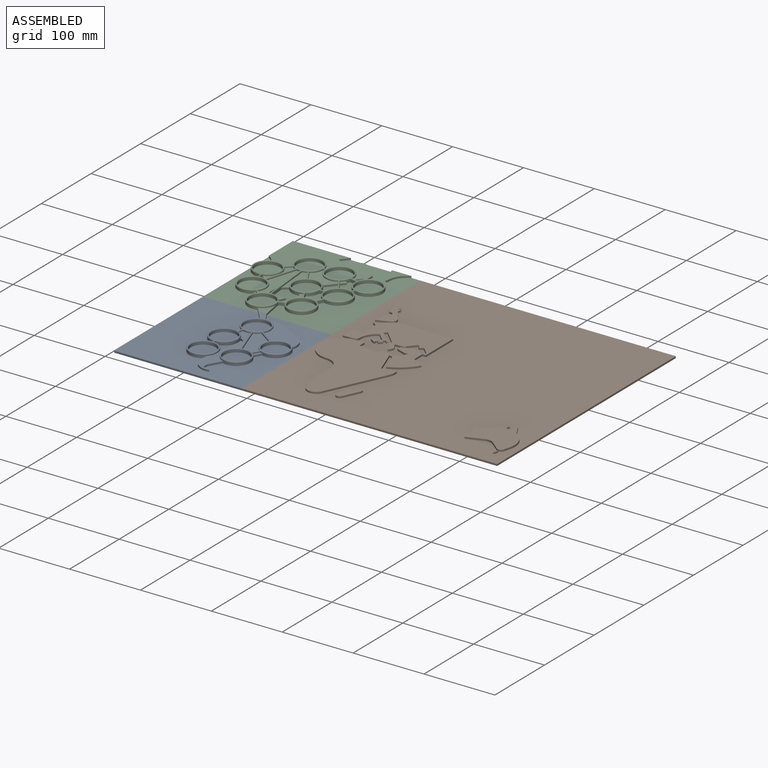
[diagram: assembled view]
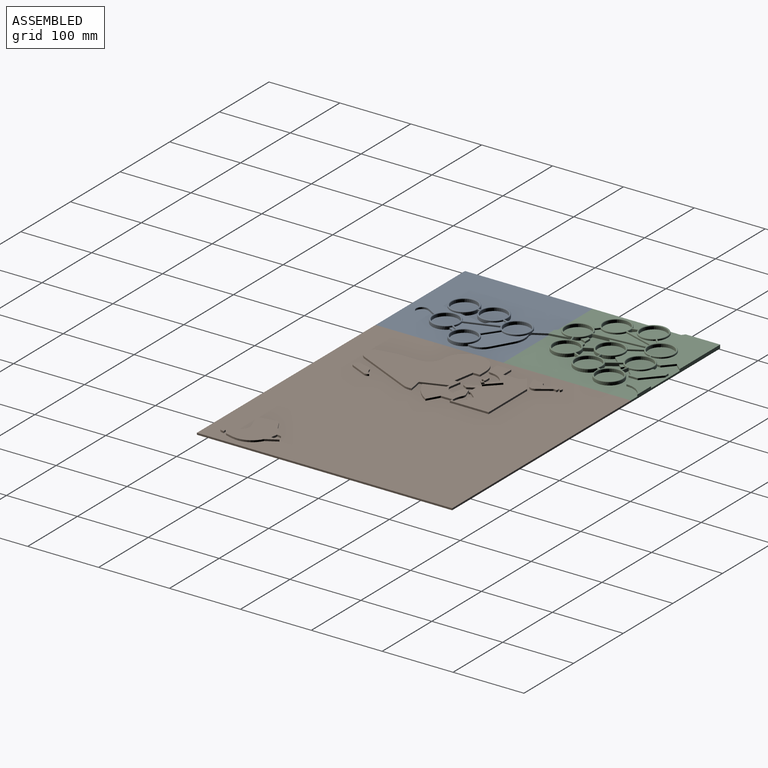
[diagram: assembled view, second angle]
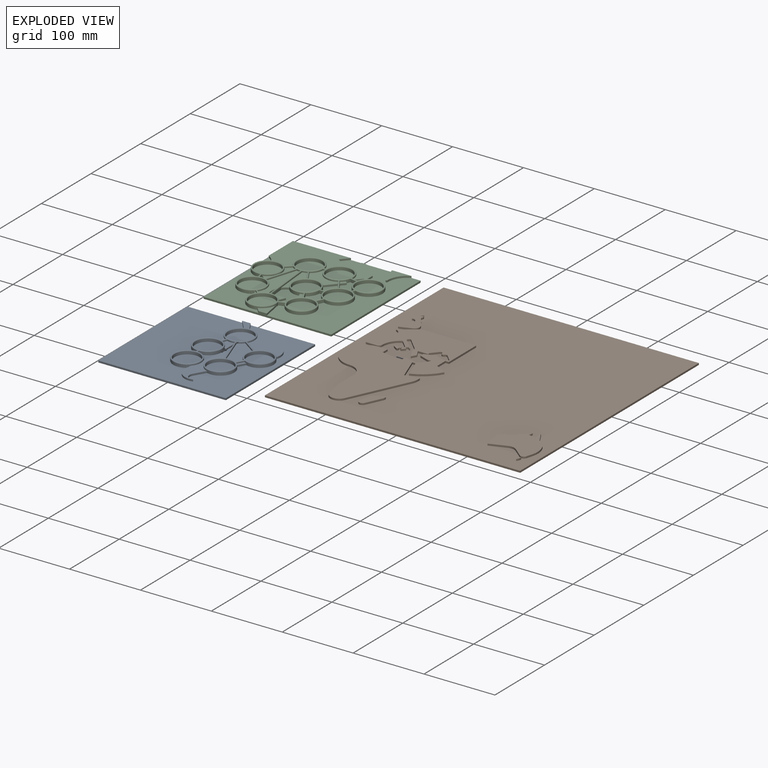
[diagram: exploded view]
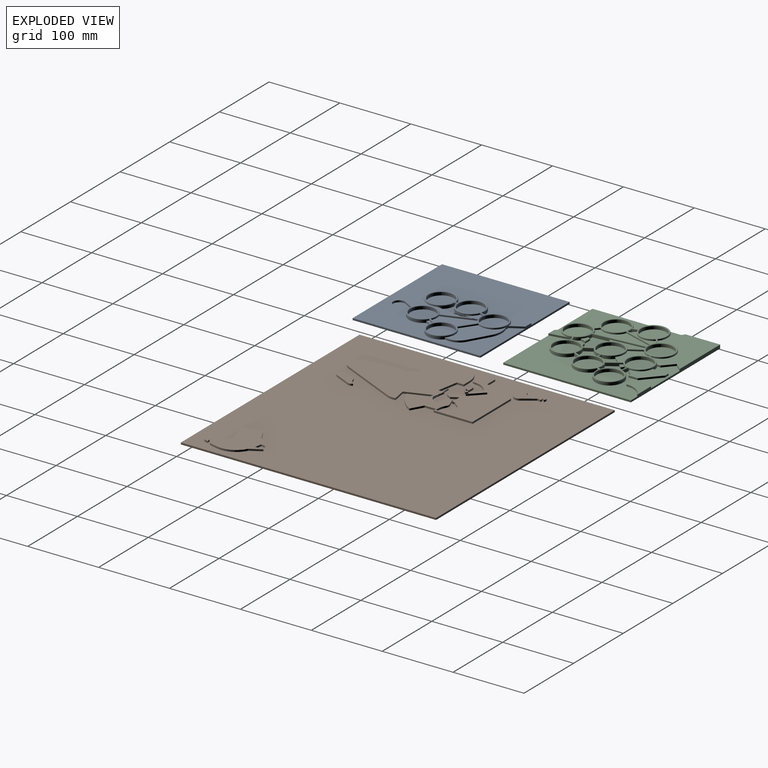
[diagram: exploded view, second angle]
ASSEMBLY  parts=3 mates=2
PART A: 66 faces, bbox 180x180x7.5 mm
  f0: plane 180x180mm, normal (0,0,1), area 22058mm2, adj f2,f4,f6,f7,f8,f9,f10,f11
  f1: plane 41.96x23.86mm, normal (0,0,1), area 302.8mm2, adj f3,f5,f26,f27,f43
  f2: cylinder r=30mm len=11.79mm, axis (0,0,-1), area 31.5mm2, adj f0,f15,f25,f33
  f3: plane 6.7x3.87mm, normal (-0.5,-0.87,0), area 19.3mm2, adj f1,f5,f12,f27
  f4: plane 6.95x2.5mm, normal (-0.98,0.17,0), area 17.6mm2, adj f0,f12,f21,f26
  f5: plane 38.09x6.72mm, normal (-0.98,0.17,0), area 96.7mm2, adj f1,f3,f12,f26
  f6: plane 10.41x6.01mm, normal (0.87,-0.5,0), area 30mm2, adj f0,f13,f28,f29
  f7: plane 16.1x9.29mm, normal (0.87,-0.5,0), area 46.5mm2, adj f0,f12,f22,f28
  f8: cylinder r=20mm len=24.4mm, axis (0,0,-1), area 70.4mm2, adj f0,f23,f24,f29
  f9: cylinder r=30mm len=26.28mm, axis (0,0,-1), area 68.2mm2, adj f0,f23,f24,f33
  f10: plane 16.91x9.76mm, normal (0.87,0.5,0), area 48.8mm2, adj f0,f14,f18,f33
  f11: plane 18.4x15.53mm, normal (-0.76,-0.64,0), area 60.2mm2, adj f0,f14,f18,f33
  f12: plane 109.97x30.74mm, normal (0,0,1), area 1215.6mm2, adj f3,f4,f5,f7,f21,f22,f26,f27
  f13: plane 11.7x8.73mm, normal (0,0,1), area 39.2mm2, adj f6,f28,f29,f47
  f14: plane 21.76x18.4mm, normal (0,0,1), area 169.2mm2, adj f10,f11,f18,f33
  f15: plane 12x7.34mm, normal (0,0,1), area 36.9mm2, adj f2,f25,f33,f41
  f16: plane 180x2.5mm, normal (0,-1,0), area 450mm2, adj f0,f17,f19,f20
  f17: plane 180x2.5mm, normal (1,0,0), area 450mm2, adj f0,f16,f18,f20
  f18: plane 180x5mm, normal (0,1,0), area 480mm2, adj f0,f10,f11,f14,f17,f19,f20
  f19: plane 180x2.5mm, normal (-1,0,0), area 450mm2, adj f0,f16,f18,f20
  f20: plane 180x180mm, normal (0,0,-1), area 32400mm2, adj f16,f17,f18,f19
  f21: cylinder r=20mm len=25.18mm, axis (0,0,-1), area 100.4mm2, adj f0,f4,f12,f22
  f22: cylinder r=8.49mm len=12.74mm, axis (0,0,-1), area 50mm2, adj f0,f7,f12,f21
  f23: plane 27.68x15.98mm, normal (0.5,0.87,0), area 79.9mm2, adj f0,f8,f9,f24
  f24: plane 63.96x46.77mm, normal (0,0,1), area 1480.6mm2, adj f8,f9,f23,f29,f33,f48
  f25: cylinder r=19.5mm len=38.97mm, axis (0,0,-1), area 262mm2, adj f0,f2,f15,f41,f42,f56
  f26: cylinder r=19.5mm len=39mm, axis (0,0,-1), area 428.5mm2, adj f0,f1,f4,f5,f12,f42,f43,f60
  f27: cylinder r=19.5mm len=37.47mm, axis (0,0,-1), area 171mm2, adj f1,f3,f12,f43,f44,f56
  f28: cylinder r=19.5mm len=39mm, axis (0,0,-1), area 286.5mm2, adj f0,f6,f7,f12,f13,f46,f47,f57
  f29: cylinder r=19.5mm len=39mm, axis (0,0,-1), area 263.7mm2, adj f0,f6,f8,f13,f24,f47,f48,f58
  f30: cylinder r=17.5mm len=35mm, axis (0,0,-1), area 439.8mm2, adj f55,f57
  f31: cylinder r=17.5mm len=35mm, axis (0,0,-1), area 439.8mm2, adj f54,f58
  f32: cylinder r=17.5mm len=35mm, axis (0,0,-1), area 439.8mm2, adj f52,f59
  f33: cylinder r=19.5mm len=39mm, axis (0,0,-1), area 246.6mm2, adj f0,f2,f9,f10,f11,f14,f15,f24
  f34: cylinder r=17.5mm len=35mm, axis (0,0,-1), area 439.8mm2, adj f51,f56
  f35: cylinder r=17.5mm len=35mm, axis (0,0,-1), area 439.8mm2, adj f50,f60
  f36: plane 43.97x15.32mm, normal (0.94,0.33,0), area 69.8mm2, adj f37,f49,f53,f64
  f37: cylinder r=19.5mm len=7.99mm, axis (0,0,-1), area 15.2mm2, adj f36,f38,f53,f59
  f38: plane 21.29x15.01mm, normal (-0.58,-0.82,0), area 39.1mm2, adj f37,f39,f53,f63
  f39: cylinder r=19.5mm len=26.77mm, axis (0,0,-1), area 45.6mm2, adj f38,f40,f53,f58
  f40: plane 9.57x5.53mm, normal (-0.87,0.5,0), area 16.6mm2, adj f39,f49,f53,f62
  f41: plane 6.64x2.38mm, normal (-0.94,0.34,0), area 10.6mm2, adj f15,f25,f33,f61
  f42: plane 4x3.05mm, normal (-1,0,0), area 12.2mm2, adj f0,f25,f26,f65
  f43: plane 4x3.05mm, normal (1,0,0), area 12.2mm2, adj f1,f26,f27,f65
  f44: plane 6.64x2.38mm, normal (0.94,-0.34,0), area 10.6mm2, adj f12,f27,f45,f61
  f45: cylinder r=19.5mm len=11.1mm, axis (0,0,-1), area 16.9mm2, adj f12,f44,f46,f59
  f46: plane 43.97x15.32mm, normal (-0.94,-0.33,0), area 69.8mm2, adj f12,f28,f45,f64
  f47: plane 9.57x5.53mm, normal (0.87,-0.5,0), area 16.6mm2, adj f13,f28,f29,f62
  f48: plane 21.29x15.01mm, normal (0.58,0.82,0), area 39.1mm2, adj f24,f29,f33,f63
  f49: cylinder r=19.5mm len=14.33mm, axis (0,0,-1), area 22.1mm2, adj f36,f40,f53,f57
  f50: plane 35x35mm, normal (0,0,1), area 962.1mm2, adj f35
  f51: plane 35x35mm, normal (0,0,1), area 962.1mm2, adj f34
  f52: plane 35x35mm, normal (0,0,1), area 962.1mm2, adj f32
  f53: plane 51.35x35.18mm, normal (0,0,1), area 937.5mm2, adj f36,f37,f38,f39,f40,f49
  f54: plane 35x35mm, normal (0,0,1), area 962.1mm2, adj f31
  f55: plane 35x35mm, normal (0,0,1), area 962.1mm2, adj f30
  f56: torus R=18.5mm, axis (0,0,1), area 361.2mm2, adj f25,f27,f34,f61,f65
  f57: torus R=18.5mm, axis (0,0,1), area 361.2mm2, adj f28,f30,f49,f62,f64
  f58: torus R=18.5mm, axis (0,0,1), area 361.2mm2, adj f29,f31,f39,f62,f63
  f59: torus R=18.5mm, axis (0,0,1), area 359.2mm2, adj f32,f33,f37,f45,f61,f63,f64
  f60: torus R=18.5mm, axis (0,0,1), area 363.2mm2, adj f26,f35,f65
  f61: cylinder r=1mm len=9.15mm, axis (-0.34,-0.94,0), area 24.4mm2, adj f41,f44,f56,f59
  f62: cylinder r=1mm len=12.26mm, axis (0.5,0.87,0), area 36.9mm2, adj f40,f47,f57,f58
  f63: cylinder r=1mm len=24.04mm, axis (-0.82,0.58,0), area 84mm2, adj f38,f48,f58,f59
  f64: cylinder r=1mm len=46.47mm, axis (-0.33,0.94,0), area 148.5mm2, adj f36,f46,f57,f59
  f65: cylinder r=1mm len=5mm, axis (0,1,0), area 11.8mm2, adj f42,f43,f56,f60
PART B: 125 faces, bbox 360x360x5 mm
  f0: plane 360x360mm, normal (0,0,1), area 111601.7mm2, adj f1,f2,f3,f4,f5,f6,f8,f9
  f1: plane 9.77x9.77mm, normal (-0.71,-0.71,0), area 34.5mm2, adj f0,f43,f78,f99
  f2: plane 4.27x2.5mm, normal (-1,0,0), area 10.7mm2, adj f0,f43,f74,f87
  f3: plane 360x2.5mm, normal (0,-1,0), area 900mm2, adj f0,f4,f6,f7
  f4: plane 360x2.5mm, normal (1,0,0), area 900mm2, adj f0,f3,f5,f7
  f5: plane 360x2.5mm, normal (0,1,0), area 900mm2, adj f0,f4,f6,f7
  f6: plane 360x2.5mm, normal (-1,0,0), area 900mm2, adj f0,f3,f5,f7
  f7: plane 360x360mm, normal (0,0,-1), area 129600mm2, adj f3,f4,f5,f6
  f8: plane 5.8x2.5mm, normal (-0.97,-0.26,0), area 15mm2, adj f0,f9,f12,f13
  f9: cylinder r=0.5mm len=2.5mm, axis (0,0,-1), area 2.5mm2, adj f0,f8,f10,f13
  f10: cylinder r=10mm len=6.18mm, axis (0,0,-1), area 16.2mm2, adj f0,f9,f11,f13
  f11: plane 2.9x2.5mm, normal (-0.26,0.97,0), area 7.5mm2, adj f0,f10,f12,f13
  f12: plane 2.5x1.1mm, normal (0.26,0.97,0), area 2.8mm2, adj f0,f8,f11,f13
  f13: plane 6.45x4.02mm, normal (0,0,1), area 15.9mm2, adj f8,f9,f10,f11,f12
  f14: plane 15.56x15.56mm, normal (-0.71,0.71,0), area 55mm2, adj f0,f15,f27,f28
  f15: plane 13.15x7.59mm, normal (-0.5,0.87,0), area 38mm2, adj f0,f14,f16,f28
  f16: cylinder r=5mm len=5.2mm, axis (0,0,-1), area 15.3mm2, adj f0,f15,f17,f28
  f17: plane 24.62x4.34mm, normal (-0.98,-0.17,0), area 62.5mm2, adj f0,f16,f18,f28
  f18: plane 23.49x8.55mm, normal (0.34,-0.94,0), area 62.5mm2, adj f0,f17,f19,f28
  f19: cylinder r=12mm len=11.76mm, axis (0,0,-1), area 31.2mm2, adj f0,f18,f20,f28
  f20: plane 13.74x11.38mm, normal (-0.64,-0.77,0), area 44.6mm2, adj f0,f19,f21,f28
  f21: cylinder r=5mm len=8.02mm, axis (0,0,-1), area 25mm2, adj f0,f20,f22,f28
  f22: plane 9.53x2.55mm, normal (0.97,-0.26,0), area 24.7mm2, adj f0,f21,f23,f28
  f23: cylinder r=30mm len=34.35mm, axis (0,0,-1), area 101.3mm2, adj f0,f22,f24,f28
  f24: plane 15.41x8.9mm, normal (0.87,0.5,0), area 44.5mm2, adj f0,f23,f25,f28
  f25: plane 11.74x2.5mm, normal (-1,0,0), area 29.3mm2, adj f0,f24,f26,f28
  f26: plane 9.85x2.5mm, normal (0.17,0.98,0), area 25mm2, adj f0,f25,f27,f28
  f27: plane 5.98x2.5mm, normal (0.98,-0.17,0), area 15.2mm2, adj f0,f14,f26,f28
  f28: plane 65x63mm, normal (0,0,1), area 2360.7mm2, adj f14,f15,f16,f17,f18,f19,f20,f21
  f29: plane 9.78x2.5mm, normal (1,0,0), area 24.4mm2, adj f0,f30,f42,f43
  f30: plane 12x2.5mm, normal (0,1,0), area 30mm2, adj f0,f29,f31,f43
  f31: cylinder r=30mm len=60mm, axis (0,0,-1), area 235.6mm2, adj f0,f30,f32,f43
  f32: cylinder r=20mm len=20mm, axis (0,0,-1), area 78.5mm2, adj f0,f31,f33,f43
  f33: plane 30.04x2.5mm, normal (-1,0,0), area 75.1mm2, adj f0,f32,f34,f43
  f34: plane 24.62x4.34mm, normal (-0.98,-0.17,0), area 62.5mm2, adj f0,f33,f35,f43
  f35: cylinder r=12.5mm len=23.64mm, axis (0,0,-1), area 79.1mm2, adj f0,f34,f36,f43
  f36: plane 81.57x38.04mm, normal (0.91,-0.42,0), area 225mm2, adj f0,f35,f37,f43
  f37: cylinder r=22.5mm len=12.94mm, axis (0,0,-1), area 33.2mm2, adj f0,f36,f38,f43
  f38: plane 19.7x3.47mm, normal (-0.17,0.98,0), area 50mm2, adj f0,f37,f39,f43
  f39: plane 34.33x12.5mm, normal (0.94,0.34,0), area 91.3mm2, adj f0,f38,f43,f51
  f40: plane 17.86x3.15mm, normal (0.17,0.98,0), area 45.3mm2, adj f0,f41,f43,f55
  f41: plane 8.12x2.5mm, normal (-1,0,0), area 20.3mm2, adj f0,f40,f42,f43
  f42: plane 29.54x5.21mm, normal (0.17,0.98,0), area 75mm2, adj f0,f29,f41,f43
  f43: plane 211.92x131.85mm, normal (0,0,1), area 14754.5mm2, adj f1,f2,f29,f30,f31,f32,f33,f34
  f44: cylinder r=16.63mm len=10.37mm, axis (0,0,-1), area 31.7mm2, adj f0,f45,f49,f50
  f45: cylinder r=5mm len=3.85mm, axis (0,0,-1), area 13.9mm2, adj f0,f44,f46,f50
  f46: plane 15.08x4.04mm, normal (-0.97,0.26,0), area 39mm2, adj f0,f45,f47,f50
  f47: cylinder r=5mm len=9.53mm, axis (0,0,-1), area 37.1mm2, adj f0,f46,f48,f50
  f48: plane 22.66x10.57mm, normal (0.91,-0.42,0), area 62.5mm2, adj f0,f47,f49,f50
  f49: cylinder r=5mm len=6.21mm, axis (0,0,-1), area 17.5mm2, adj f0,f44,f48,f50
  f50: plane 31.75x20.57mm, normal (0,0,1), area 326.7mm2, adj f44,f45,f46,f47,f48,f49
  f51: plane 4.92x2.5mm, normal (-0.17,-0.98,0), area 12.5mm2, adj f0,f39,f43,f52
  f52: plane 26.98x9.82mm, normal (-0.94,-0.34,0), area 71.8mm2, adj f0,f43,f51,f53
  f53: cylinder r=60mm len=31.44mm, axis (0,0,-1), area 104.7mm2, adj f0,f43,f52,f54
  f54: plane 16.85x9.73mm, normal (0.5,0.87,0), area 48.6mm2, adj f0,f43,f53,f56
  f55: cylinder r=17.5mm len=13.91mm, axis (0,0,-1), area 47.7mm2, adj f0,f40,f43,f62
  f56: plane 16.24x2.5mm, normal (1,0,0), area 40.6mm2, adj f0,f43,f54,f71
  f57: cylinder r=27.5mm len=13.88mm, axis (0,0,-1), area 36.4mm2, adj f0,f43,f58,f70
  f58: cylinder r=7.5mm len=6.35mm, axis (0,0,-1), area 16.5mm2, adj f0,f43,f57,f59
  f59: plane 11.77x4.28mm, normal (-0.34,0.94,0), area 31.3mm2, adj f0,f43,f58,f60
  f60: plane 5.53x2.5mm, normal (-1,0,0), area 13.8mm2, adj f0,f43,f59,f61
  f61: plane 11.77x4.28mm, normal (-0.34,-0.94,0), area 31.3mm2, adj f0,f43,f60,f62
  f62: cylinder r=7.5mm len=6.32mm, axis (0,0,-1), area 16.4mm2, adj f0,f43,f55,f61
  f63: plane 2.5x0.61mm, normal (0.71,-0.71,0), area 2.1mm2, adj f0,f43,f64,f73
  f64: cylinder r=2.5mm len=3.37mm, axis (0,0,-1), area 9.3mm2, adj f0,f43,f63,f65
  f65: plane 8.43x7.07mm, normal (0.77,-0.64,0), area 27.5mm2, adj f0,f43,f64,f66
  f66: cylinder r=2.5mm len=4.42mm, axis (0,0,-1), area 15.3mm2, adj f0,f43,f65,f67
  f67: cylinder r=2.5mm len=4.55mm, axis (0,0,-1), area 15.8mm2, adj f0,f43,f66,f68
  f68: cylinder r=2.5mm len=3.8mm, axis (0,0,-1), area 10.9mm2, adj f0,f43,f67,f69
  f69: plane 8.55x8.42mm, normal (-0.7,-0.71,0), area 30mm2, adj f0,f43,f68,f70
  f70: cylinder r=2.5mm len=4.28mm, axis (0,0,-1), area 14.8mm2, adj f0,f43,f57,f69
  f71: plane 5x2.5mm, normal (0,-1,0), area 12.5mm2, adj f0,f43,f56,f72
  f72: plane 54.82x2.5mm, normal (1,0,0), area 137.1mm2, adj f0,f43,f71,f100
  f73: plane 14.41x2.5mm, normal (0,-1,0), area 36mm2, adj f0,f43,f63,f77
  f74: cylinder r=5mm len=2.5mm, axis (0,0,-1), area 6.5mm2, adj f0,f2,f43,f75
  f75: plane 12.7x7.33mm, normal (-0.87,-0.5,0), area 36.7mm2, adj f0,f43,f74,f76
  f76: plane 6.93x4mm, normal (0.87,-0.5,0), area 20mm2, adj f0,f43,f75,f77
  f77: plane 9.53x5.5mm, normal (0.87,0.5,0), area 27.5mm2, adj f0,f43,f73,f76
  f78: cylinder r=6mm len=8.84mm, axis (0,0,-1), area 24.9mm2, adj f0,f1,f43,f79
  f79: plane 2.5x0.88mm, normal (-0.71,-0.71,0), area 3.1mm2, adj f0,f43,f78,f80
  f80: plane 4.4x4.4mm, normal (0.71,-0.71,0), area 15.6mm2, adj f0,f43,f79,f81
  f81: plane 2.5x2.48mm, normal (0.71,0.71,0), area 8.7mm2, adj f0,f43,f80,f82
  f82: plane 2.5x2.48mm, normal (0.71,-0.71,0), area 8.8mm2, adj f0,f43,f81,f83
  f83: plane 2.5x2.48mm, normal (-0.71,-0.71,0), area 8.8mm2, adj f0,f43,f82,f84
  f84: plane 2.5x0.88mm, normal (0.71,-0.71,0), area 3.1mm2, adj f0,f43,f83,f85
  f85: plane 17.54x17.54mm, normal (0.71,0.71,0), area 62mm2, adj f0,f43,f84,f86
  f86: plane 3.54x3.54mm, normal (0.71,-0.71,0), area 12.5mm2, adj f0,f43,f85,f87
  f87: plane 19x19mm, normal (-0.71,-0.71,0), area 67.2mm2, adj f0,f2,f43,f86
  f88: plane 2.5x0mm, normal (-1,-0.07,0), area 0mm2, adj f0,f89,f95,f96
  f89: cylinder r=1mm len=2.5mm, axis (0,0,-1), area 6.6mm2, adj f0,f88,f90,f96
  f90: plane 6.46x4.16mm, normal (-0.54,-0.84,0), area 19.2mm2, adj f0,f89,f91,f96
  f91: cylinder r=1mm len=2.5mm, axis (0,0,-1), area 6mm2, adj f0,f90,f92,f96
  f92: plane 2.5x1.36mm, normal (0.97,0.26,0), area 3.5mm2, adj f0,f91,f93,f96
  f93: plane 2.5x1.83mm, normal (0.71,-0.71,0), area 6.5mm2, adj f0,f92,f94,f96
  f94: cylinder r=1mm len=2.5mm, axis (0,0,-1), area 5.9mm2, adj f0,f93,f95,f96
  f95: plane 8.1x2.5mm, normal (0,1,0), area 20.3mm2, adj f0,f88,f94,f96
  f96: plane 10.18x6.16mm, normal (0,0,1), area 38.4mm2, adj f88,f89,f90,f91,f92,f93,f94,f95
  f97: plane 15x2.5mm, normal (0,-1,0), area 37.5mm2, adj f0,f43,f98,f106
  f98: cylinder r=5mm len=5mm, axis (0,0,-1), area 19.6mm2, adj f0,f43,f97,f99
  f99: cylinder r=25mm len=22.04mm, axis (0,0,-1), area 67.5mm2, adj f0,f1,f43,f98
  f100: plane 77.43x2.5mm, normal (0,1,0), area 193.6mm2, adj f0,f43,f72,f101
  f101: plane 23.45x16.42mm, normal (-0.57,0.82,0), area 71.6mm2, adj f0,f43,f100,f102
  f102: cylinder r=0.5mm len=2.5mm, axis (0,0,-1), area 3mm2, adj f0,f43,f101,f103
  f103: cylinder r=8mm len=7.89mm, axis (0,0,-1), area 28.1mm2, adj f0,f43,f102,f104
  f104: plane 20x2.5mm, normal (-1,0,0), area 50mm2, adj f0,f43,f103,f105
  f105: plane 16x2.5mm, normal (0,1,0), area 40mm2, adj f0,f43,f104,f106
  f106: plane 20x2.5mm, normal (-1,0,0), area 50mm2, adj f0,f43,f97,f105
  f107: plane 16.51x11.29mm, normal (0.83,0.56,0), area 50mm2, adj f0,f108,f123,f124
  f108: cylinder r=2.5mm len=2.5mm, axis (0,0,-1), area 6.5mm2, adj f0,f107,f109,f124
  f109: cylinder r=5mm len=2.65mm, axis (0,0,-1), area 6.8mm2, adj f0,f108,f110,f124
  f110: cylinder r=0.5mm len=2.5mm, axis (0,0,-1), area 1.5mm2, adj f0,f109,f111,f124
  f111: cylinder r=5mm len=4.62mm, axis (0,0,-1), area 12.3mm2, adj f0,f110,f112,f124
  f112: cylinder r=7.5mm len=3.44mm, axis (0,0,-1), area 11mm2, adj f0,f111,f113,f124
  f113: cylinder r=0.5mm len=2.5mm, axis (0,0,-1), area 2.5mm2, adj f0,f112,f114,f124
  f114: cylinder r=5mm len=7.6mm, axis (0,0,-1), area 27.6mm2, adj f0,f113,f115,f124
  f115: plane 10.35x2.5mm, normal (-1,-0.09,0), area 26mm2, adj f0,f114,f116,f124
  f116: cylinder r=6mm len=11.96mm, axis (0,0,-1), area 49.1mm2, adj f0,f115,f117,f124
  f117: cylinder r=1.25mm len=2.5mm, axis (0,0,-1), area 4.8mm2, adj f0,f116,f118,f124
  f118: plane 7.37x2.5mm, normal (-1,-0.09,0), area 18.5mm2, adj f0,f117,f119,f124
  f119: cylinder r=2.5mm len=2.5mm, axis (0,0,-1), area 3.3mm2, adj f0,f118,f120,f124
  f120: plane 4.21x2.5mm, normal (-0.91,0.42,0), area 11.6mm2, adj f0,f119,f121,f124
  f121: cylinder r=1mm len=2.5mm, axis (0,0,-1), area 5.9mm2, adj f0,f120,f122,f124
  f122: plane 15.59x5.67mm, normal (0.34,-0.94,0), area 41.5mm2, adj f0,f121,f123,f124
  f123: cylinder r=7.5mm len=11.28mm, axis (0,0,-1), area 34.2mm2, adj f0,f107,f122,f124
  f124: plane 43.18x22.3mm, normal (0,0,1), area 502.1mm2, adj f107,f108,f109,f110,f111,f112,f113,f114
PART C: 161 faces, bbox 181.1x180x7.5 mm
  f0: plane 131.25x77.02mm, normal (0,0,1), area 2877.6mm2, adj f5,f6,f7,f13,f16,f72,f73,f74
  f1: plane 180x107.83mm, normal (0,0,1), area 9187.8mm2, adj f2,f3,f4,f8,f13,f14,f15,f18
  f2: plane 2.96x2.5mm, normal (0,-1,0), area 7.4mm2, adj f1,f9,f18,f36
  f3: plane 22.19x2.5mm, normal (-1,0,0), area 55.5mm2, adj f1,f9,f22,f36
  f4: plane 4.93x2.5mm, normal (1,0,0), area 12.3mm2, adj f1,f10,f23,f36
  f5: cylinder r=37.5mm len=12.99mm, axis (0,0,-1), area 45.6mm2, adj f0,f10,f16,f72
  f6: plane 5.93x4.97mm, normal (-0.77,-0.64,0), area 19.3mm2, adj f0,f11,f74,f76
  f7: plane 6.61x5.54mm, normal (-0.77,-0.64,0), area 21.6mm2, adj f0,f12,f13,f76
  f8: plane 2.5x0.18mm, normal (0,1,0), area 0.5mm2, adj f1,f12,f25,f76
  f9: plane 42x30.71mm, normal (0,0,1), area 712.1mm2, adj f2,f3,f18,f19,f20,f21,f22,f36
  f10: plane 86.58x65.33mm, normal (0,0,1), area 3526.6mm2, adj f4,f5,f15,f16,f23,f24,f36,f69
  f11: plane 7x6.53mm, normal (0,0,1), area 15.8mm2, adj f6,f74,f75,f76
  f12: plane 24.62x17.54mm, normal (0,0,1), area 190.4mm2, adj f7,f8,f13,f25,f76
  f13: plane 180x5mm, normal (0,-1,0), area 480mm2, adj f0,f1,f7,f12,f14,f16,f17,f25
  f14: plane 180x2.5mm, normal (1,0,0), area 450mm2, adj f1,f13,f15,f17
  f15: plane 180x5mm, normal (0,1,0), area 723.6mm2, adj f1,f10,f14,f16,f17,f24,f26,f28
  f16: plane 180x5mm, normal (-1,0,0), area 571.9mm2, adj f0,f5,f10,f13,f15,f17
  f17: plane 180x180mm, normal (0,0,-1), area 32400mm2, adj f13,f14,f15,f16
  f18: plane 7.17x6.45mm, normal (0.74,-0.67,0), area 24.1mm2, adj f1,f2,f9,f19
  f19: plane 4.1x2.5mm, normal (0,-1,0), area 10.2mm2, adj f1,f9,f18,f20
  f20: plane 13.07x2.5mm, normal (1,0,0), area 32.7mm2, adj f1,f9,f19,f21
  f21: plane 24.2x21.76mm, normal (0.67,0.74,0), area 81.4mm2, adj f1,f9,f20,f22
  f22: plane 6.51x2.5mm, normal (0,1,0), area 16.3mm2, adj f1,f3,f9,f21
  f23: plane 14.41x12.96mm, normal (0.67,0.74,0), area 48.5mm2, adj f1,f4,f10,f24
  f24: plane 10.63x9.56mm, normal (0.74,-0.67,0), area 35.7mm2, adj f1,f10,f15,f23
  f25: plane 24.62x4.34mm, normal (0.98,0.17,0), area 62.5mm2, adj f1,f8,f12,f13
  f26: plane 26.56x9.67mm, normal (-0.94,-0.34,0), area 70.7mm2, adj f1,f15,f27,f29
  f27: plane 2.5x2mm, normal (0,-1,0), area 5mm2, adj f1,f26,f28,f29
  f28: cylinder r=27.5mm len=26.56mm, axis (0,0,-1), area 82.4mm2, adj f1,f15,f27,f29
  f29: plane 27.71x26.56mm, normal (0,0,1), area 293.5mm2, adj f15,f26,f27,f28
  f30: plane 1.87x0.07mm, normal (-0.94,-0.34,0), area 0.1mm2, adj f31,f85,f132,f145
  f31: cylinder r=17.5mm len=35mm, axis (0,0,-1), area 439.8mm2, adj f30,f85,f132,f133,f145
  f32: plane 10.95x6.09mm, normal (-0.87,-0.49,0), area 39.2mm2, adj f59,f60,f106,f107,f112,f155
  f33: plane 17.49x11.55mm, normal (-0.83,-0.55,0), area 70.5mm2, adj f62,f63,f120,f121,f122,f159
  f34: cylinder r=19.5mm len=28.64mm, axis (0,0,-1), area 99mm2, adj f64,f65,f120,f121,f122,f145
  f35: cylinder r=17.5mm len=35mm, axis (0,0,-1), area 439.3mm2, adj f117,f118,f119,f139
  f36: cylinder r=19.5mm len=38.97mm, axis (0,0,-1), area 134.5mm2, adj f1,f2,f3,f4,f9,f10,f68,f69
  f37: plane 17.49x11.55mm, normal (0.83,0.55,0), area 71.8mm2, adj f40,f84,f113,f115,f116,f159
  f38: cylinder r=17.5mm len=35mm, axis (0,0,-1), area 439.8mm2, adj f131,f141
  f39: cylinder r=19.5mm len=18.93mm, axis (0,0,-1), area 73.1mm2, adj f56,f61,f101,f102,f103,f112,f141
  f40: cylinder r=19.5mm len=10.75mm, axis (0,0,-1), area 35mm2, adj f37,f81,f113,f114,f116,f139
  f41: plane 9.41x4.18mm, normal (-0.91,0.41,0), area 41.2mm2, adj f42,f86,f136,f156
  f42: cylinder r=19.5mm len=15.58mm, axis (0,0,-1), area 64.2mm2, adj f41,f43,f136,f146
  f43: plane 10.95x6.09mm, normal (0.87,0.49,0), area 50.1mm2, adj f42,f44,f136,f155
  f44: cylinder r=19.5mm len=15.54mm, axis (0,0,-1), area 75mm2, adj f43,f45,f136,f145
  f45: plane 6.05x4mm, normal (0,-1,0), area 24.2mm2, adj f44,f86,f136,f157
  f46: plane 7.37x7.32mm, normal (0.7,-0.71,0), area 15.6mm2, adj f47,f90,f126,f151
  f47: cylinder r=19.5mm len=6.35mm, axis (0,0,-1), area 11.2mm2, adj f46,f48,f126,f140
  f48: plane 42.82x13.38mm, normal (-0.95,0.3,0), area 67.3mm2, adj f47,f49,f126,f150
  f49: cylinder r=19.5mm len=8.08mm, axis (0,0,-1), area 29.3mm2, adj f48,f50,f126,f127,f128,f142
  f50: plane 7.2x4mm, normal (0.98,0.22,0), area 29.5mm2, adj f49,f90,f128,f152
  f51: plane 42.82x13.38mm, normal (0.95,-0.3,0), area 67.3mm2, adj f52,f91,f123,f150
  f52: cylinder r=19.5mm len=5.62mm, axis (0,0,-1), area 8.5mm2, adj f51,f53,f123,f140
  f53: plane 71.21x6.47mm, normal (-1,-0.09,0), area 157.6mm2, adj f52,f54,f123,f124,f125,f149
  f54: cylinder r=19.5mm len=11.38mm, axis (0,0,-1), area 23mm2, adj f53,f55,f123,f124,f125,f141
  f55: plane 5.43x4.65mm, normal (0.65,0.76,0), area 10.7mm2, adj f54,f91,f123,f153
  f56: plane 71.21x6.47mm, normal (1,0.09,0), area 163.8mm2, adj f39,f57,f104,f105,f112,f149
  f57: cylinder r=19.5mm len=6.4mm, axis (0,0,-1), area 10.2mm2, adj f56,f58,f104,f140
  f58: plane 16.6x9.96mm, normal (-0.86,-0.51,0), area 29mm2, adj f57,f59,f104,f148
  f59: cylinder r=19.5mm len=35.68mm, axis (0,0,-1), area 143.2mm2, adj f32,f58,f104,f105,f106,f108,f112,f145
  f60: cylinder r=19.5mm len=21.75mm, axis (0,0,-1), area 92.7mm2, adj f32,f61,f109,f110,f111,f112,f146
  f61: plane 8.05x4mm, normal (-0.32,0.95,0), area 33.9mm2, adj f39,f60,f112,f154
  f62: cylinder r=19.5mm len=29.37mm, axis (0,0,-1), area 60mm2, adj f33,f93,f120,f139
  f63: cylinder r=19.5mm len=14.7mm, axis (0,0,-1), area 69mm2, adj f33,f64,f122,f144
  f64: plane 6.05x4mm, normal (0,1,0), area 24.2mm2, adj f34,f63,f122,f157
  f65: plane 16.6x9.96mm, normal (0.86,0.51,0), area 29mm2, adj f34,f66,f120,f148
  f66: cylinder r=19.5mm len=15.18mm, axis (0,0,-1), area 27.1mm2, adj f65,f93,f120,f140
  f67: cylinder r=19.5mm len=39mm, axis (0,0,-1), area 371.5mm2, adj f1,f68,f94,f138
  f68: plane 9.87x4mm, normal (0.2,0.98,0), area 40.3mm2, adj f1,f36,f67,f160
  f69: plane 3.05x1.5mm, normal (0,1,0), area 4.6mm2, adj f10,f36,f70,f147
  f70: cylinder r=19.5mm len=38.97mm, axis (0,0,-1), area 111.8mm2, adj f10,f69,f71,f140
  f71: plane 7.37x7.32mm, normal (-0.7,0.71,0), area 15.6mm2, adj f10,f70,f72,f151
  f72: cylinder r=19.5mm len=39mm, axis (0,0,-1), area 260.5mm2, adj f0,f5,f10,f71,f73,f143
  f73: plane 7.2x4mm, normal (-0.98,-0.22,0), area 29.5mm2, adj f0,f72,f74,f152
  f74: cylinder r=19.5mm len=38.3mm, axis (0,0,-1), area 283.5mm2, adj f0,f6,f11,f73,f75,f142
  f75: plane 5.43x4.65mm, normal (-0.65,-0.76,0), area 10.7mm2, adj f11,f74,f76,f153
  f76: cylinder r=19.5mm len=39mm, axis (0,0,-1), area 251.3mm2, adj f0,f1,f6,f7,f8,f11,f12,f75
  f77: plane 8.05x4mm, normal (0.32,-0.95,0), area 33.9mm2, adj f1,f76,f78,f154
  f78: cylinder r=19.5mm len=37.66mm, axis (0,0,-1), area 301.8mm2, adj f1,f77,f79,f146
  f79: plane 9.41x4.18mm, normal (0.91,-0.41,0), area 41.2mm2, adj f1,f78,f80,f156
  f80: cylinder r=19.5mm len=37.38mm, axis (0,0,-1), area 241.7mm2, adj f1,f79,f94,f144
  f81: plane 9.87x4mm, normal (-0.2,-0.98,0), area 40.3mm2, adj f40,f82,f116,f160
  f82: cylinder r=19.5mm len=20.88mm, axis (0,0,-1), area 102.6mm2, adj f81,f83,f116,f138
  f83: plane 4x3.53mm, normal (-0.94,0.35,0), area 15.1mm2, adj f82,f84,f116,f158
  f84: cylinder r=19.5mm len=15.79mm, axis (0,0,-1), area 65.5mm2, adj f37,f83,f116,f144
  f85: plane 1.87x0.06mm, normal (0.87,0.49,0), area 0.1mm2, adj f30,f31,f132,f145
  f86: cylinder r=19.5mm len=16.39mm, axis (0,0,-1), area 81.9mm2, adj f41,f45,f136,f144
  f87: cylinder r=17.5mm len=35mm, axis (0,0,-1), area 439.8mm2, adj f97,f146
  f88: cylinder r=17.5mm len=35mm, axis (0,0,-1), area 439.8mm2, adj f130,f142
  f89: cylinder r=17.5mm len=35mm, axis (0,0,-1), area 439.8mm2, adj f129,f143
  f90: cylinder r=19.5mm len=31.81mm, axis (0,0,-1), area 61.7mm2, adj f46,f50,f126,f127,f128,f143
  f91: cylinder r=19.5mm len=30.2mm, axis (0,0,-1), area 54.8mm2, adj f51,f55,f123,f142
  f92: cylinder r=17.5mm len=35mm, axis (0,0,-1), area 439.8mm2, adj f137,f140
  f93: plane 3.05x1.5mm, normal (0,-1,0), area 4.6mm2, adj f62,f66,f120,f147
  f94: plane 4x3.53mm, normal (0.94,-0.35,0), area 15.1mm2, adj f1,f67,f80,f158
  f95: cylinder r=17.5mm len=35mm, axis (0,0,-1), area 439.8mm2, adj f135,f138
  f96: cylinder r=17.5mm len=35mm, axis (0,0,-1), area 439.8mm2, adj f134,f144
  f97: plane 35x35mm, normal (0,0,1), area 962.1mm2, adj f87
  f98: cylinder r=2.5mm len=4.85mm, axis (0,0,-1), area 19.6mm2, adj f106,f107,f108,f112
  f99: plane 10.07x2.5mm, normal (0,1,0), area 25.2mm2, adj f101,f102,f103,f112
  f100: plane 5x2.5mm, normal (0,1,0), area 12.5mm2, adj f109,f110,f111,f112
  f101: plane 11.83x8.84mm, normal (0,0,1), area 60.8mm2, adj f39,f99,f102,f103
  f102: plane 3.94x2.5mm, normal (-0.91,0.41,0), area 10.8mm2, adj f39,f99,f101,f112
  f103: plane 8.84x3.96mm, normal (0.91,-0.41,0), area 24.2mm2, adj f39,f99,f101,f112
  f104: plane 50.79x16.36mm, normal (0,0,1), area 394.6mm2, adj f56,f57,f58,f59,f105
  f105: cylinder r=20mm len=7.55mm, axis (0,0,-1), area 24.1mm2, adj f56,f59,f104,f112
  f106: plane 11.58x7.94mm, normal (0,0,1), area 53.1mm2, adj f32,f59,f98,f107,f108
  f107: plane 4.41x2.5mm, normal (0.94,0.34,0), area 11.7mm2, adj f32,f98,f106,f112
  f108: plane 8.48x3.09mm, normal (-0.94,-0.34,0), area 22.6mm2, adj f59,f98,f106,f112
  f109: plane 5.23x2.7mm, normal (0,0,1), area 7mm2, adj f60,f100,f110,f111
  f110: plane 2.5x0.23mm, normal (0.41,0.91,0), area 0.6mm2, adj f60,f100,f109,f112
  f111: plane 3.84x2.7mm, normal (-0.58,-0.82,0), area 11.7mm2, adj f60,f100,f109,f112
  f112: plane 40.76x37.48mm, normal (0,0,1), area 778.2mm2, adj f32,f39,f56,f59,f60,f61,f98,f99
  f113: plane 9.27x8.27mm, normal (0,0,1), area 34.3mm2, adj f37,f40,f114,f115
  f114: plane 3.38x3.04mm, normal (0.67,0.74,0), area 11.4mm2, adj f40,f113,f115,f116
  f115: plane 6.23x5.6mm, normal (0.74,-0.67,0), area 21mm2, adj f37,f113,f114,f116
  f116: plane 28.25x26mm, normal (0,0,1), area 368.7mm2, adj f37,f40,f81,f82,f83,f84,f114,f115
  f117: plane 4.31x0.05mm, normal (0.67,0.74,0), area 0.2mm2, adj f35,f118,f119,f139
  f118: plane 4.3x0.1mm, normal (-0.74,0.67,0), area 0.6mm2, adj f35,f117,f119,f139
  f119: plane 35x35mm, normal (0,0,1), area 962.1mm2, adj f35,f117,f118
  f120: plane 43.97x34.02mm, normal (0,0,1), area 636.3mm2, adj f33,f34,f62,f65,f66,f93,f121
  f121: plane 13.74x12.36mm, normal (0.74,-0.67,0), area 46.2mm2, adj f33,f34,f120,f122
  f122: plane 27.73x20.96mm, normal (0,0,1), area 294.8mm2, adj f33,f34,f63,f64,f121
  f123: plane 77.68x24.12mm, normal (0,0,1), area 1002.5mm2, adj f51,f52,f53,f54,f55,f91,f124
  f124: cylinder r=20mm len=20.29mm, axis (0,0,-1), area 53.2mm2, adj f53,f54,f123,f125
  f125: plane 20.29x4.36mm, normal (0,0,1), area 51.8mm2, adj f53,f54,f124
  f126: plane 46.68x22.19mm, normal (0,0,1), area 278.3mm2, adj f46,f47,f48,f49,f90,f127
  f127: plane 7.52x7.52mm, normal (-0.71,-0.71,0), area 26.6mm2, adj f49,f90,f126,f128
  f128: plane 8.39x7.52mm, normal (0,0,1), area 27.3mm2, adj f49,f50,f90,f127
  f129: plane 35x35mm, normal (0,0,1), area 962.1mm2, adj f89
  f130: plane 35x35mm, normal (0,0,1), area 962.1mm2, adj f88
  f131: plane 35x35mm, normal (0,0,1), area 962.1mm2, adj f38
  f132: plane 0.07x0.03mm, normal (0,0,1), area 0mm2, adj f30,f31,f85
  f133: plane 35x35mm, normal (0,0,1), area 962.1mm2, adj f31
  f134: plane 35x35mm, normal (0,0,1), area 962.1mm2, adj f96
  f135: plane 35x35mm, normal (0,0,1), area 962.1mm2, adj f95
  f136: plane 26.49x25.85mm, normal (0,0,1), area 386.4mm2, adj f41,f42,f43,f44,f45,f86
  f137: plane 35x35mm, normal (0,0,1), area 962.1mm2, adj f92
  f138: torus R=18.5mm, axis (0,0,1), area 361.2mm2, adj f67,f82,f95,f158,f160
  f139: torus R=18.5mm, axis (0,0,1), area 359.1mm2, adj f35,f36,f40,f62,f117,f118,f147,f159
  f140: torus R=18.5mm, axis (0,0,1), area 355.2mm2, adj f47,f52,f57,f66,f70,f92,f147,f148
  f141: torus R=18.5mm, axis (0,0,1), area 359.2mm2, adj f38,f39,f54,f76,f149,f153,f154
  f142: torus R=18.5mm, axis (0,0,1), area 359.2mm2, adj f49,f74,f88,f91,f150,f152,f153
  f143: torus R=18.5mm, axis (0,0,1), area 361.2mm2, adj f72,f89,f90,f151,f152
  f144: torus R=18.5mm, axis (0,0,1), area 357.2mm2, adj f63,f80,f84,f86,f96,f156,f157,f158
  f145: torus R=18.5mm, axis (0,0,1), area 359.2mm2, adj f30,f31,f34,f44,f59,f85,f148,f155
  f146: torus R=18.5mm, axis (0,0,1), area 359.2mm2, adj f42,f60,f78,f87,f154,f155,f156
  f147: cylinder r=1mm len=5mm, axis (1,0,0), area 11.8mm2, adj f69,f93,f139,f140
  f148: cylinder r=1mm len=19.3mm, axis (-0.51,0.86,0), area 63mm2, adj f58,f65,f140,f145
  f149: cylinder r=1mm len=73.33mm, axis (-0.09,1,0), area 226.8mm2, adj f53,f56,f140,f141
  f150: cylinder r=1mm len=45.28mm, axis (0.3,0.95,0), area 143.2mm2, adj f48,f51,f140,f142
  f151: cylinder r=1mm len=10.16mm, axis (0.71,0.7,0), area 34.8mm2, adj f46,f71,f140,f143
  f152: cylinder r=1mm len=9.54mm, axis (-0.22,0.98,0), area 25.4mm2, adj f50,f73,f142,f143
  f153: cylinder r=1mm len=8.21mm, axis (0.76,-0.65,0), area 24.7mm2, adj f55,f75,f141,f142
  f154: cylinder r=1mm len=10.53mm, axis (-0.95,-0.32,0), area 28.9mm2, adj f61,f77,f141,f146
  f155: cylinder r=1mm len=13.63mm, axis (-0.49,0.87,0), area 41.6mm2, adj f32,f43,f145,f146
  f156: cylinder r=1mm len=12mm, axis (0.41,0.91,0), area 34.5mm2, adj f41,f79,f144,f146
  f157: cylinder r=1mm len=8mm, axis (1,0,0), area 21.2mm2, adj f45,f64,f144,f145
  f158: cylinder r=1mm len=6.06mm, axis (0.35,0.94,0), area 14.1mm2, adj f83,f94,f138,f144
  f159: cylinder r=1mm len=20.22mm, axis (0.55,-0.83,0), area 68mm2, adj f33,f37,f139,f144
  f160: cylinder r=1mm len=12.19mm, axis (-0.98,0.2,0), area 33.9mm2, adj f68,f81,f138,f139
PLACE A t=(5.01,-12.83,-1.25)mm
PLACE B t=(275.01,77.17,-1.25)mm
PLACE C t=(5.01,167.17,-1.25)mm
MATE fastened C.f14 <-> B.f6  axis (1,0,0) through (95.01,257.17,0)mm
MATE fastened A.f18 <-> C.f13  axis (0,1,0) through (4.03,77.17,1.25)mm
